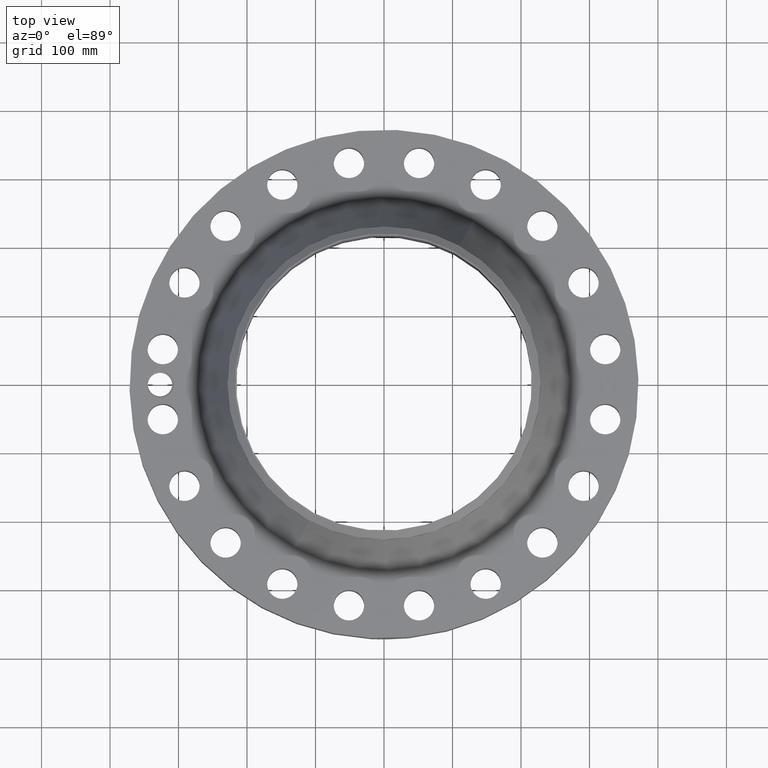
[diagram: clean part render]
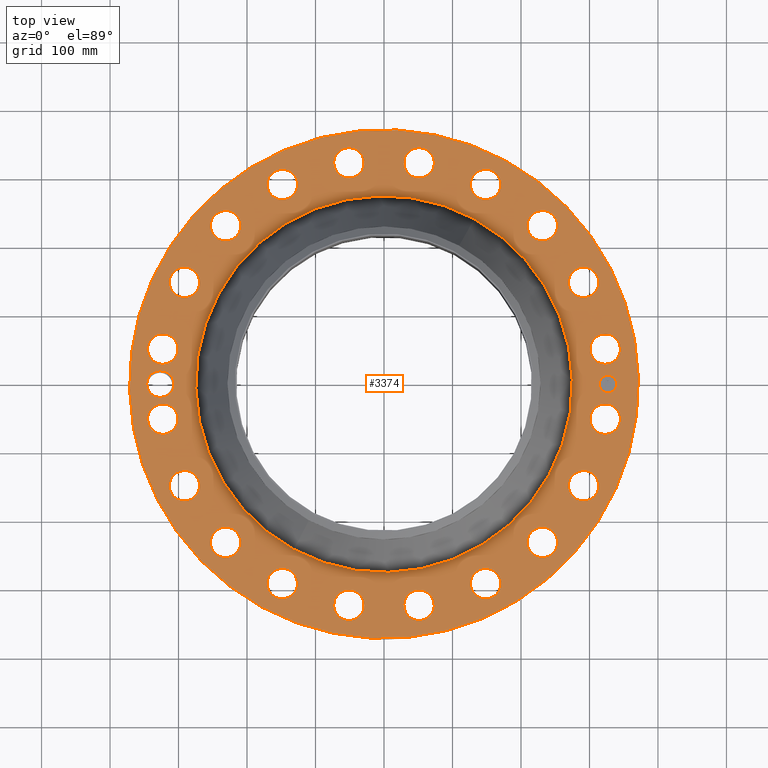
[diagram: same view with one face highlighted and labeled with its STEP entity id]
A machine part, top view. The second image highlights one B-rep face of the part: STEP entity #3374.
In plain terms, the highlighted planar face has unit normal (0, 0, -1).
Its self-contained STEP definition (entity closure, byte-faithful):
#2190=AXIS2_PLACEMENT_3D('Circle Axis2P3D',#2188,#2189,$) ;
#2216=AXIS2_PLACEMENT_3D('Circle Axis2P3D',#2214,#2215,$) ;
#2914=AXIS2_PLACEMENT_3D('Plane Axis2P3D',#2911,#2912,#2913) ;
#2918=AXIS2_PLACEMENT_3D('Circle Axis2P3D',#2916,#2917,$) ;
#2927=AXIS2_PLACEMENT_3D('Circle Axis2P3D',#2925,#2926,$) ;
#2976=AXIS2_PLACEMENT_3D('Circle Axis2P3D',#2974,#2975,$) ;
#2983=AXIS2_PLACEMENT_3D('Circle Axis2P3D',#2981,#2982,$) ;
#2994=AXIS2_PLACEMENT_3D('Circle Axis2P3D',#2992,#2993,$) ;
#3003=AXIS2_PLACEMENT_3D('Circle Axis2P3D',#3001,#3002,$) ;
#3016=AXIS2_PLACEMENT_3D('Circle Axis2P3D',#3014,#3015,$) ;
#3025=AXIS2_PLACEMENT_3D('Circle Axis2P3D',#3023,#3024,$) ;
#3034=AXIS2_PLACEMENT_3D('Circle Axis2P3D',#3032,#3033,$) ;
#3043=AXIS2_PLACEMENT_3D('Circle Axis2P3D',#3041,#3042,$) ;
#3052=AXIS2_PLACEMENT_3D('Circle Axis2P3D',#3050,#3051,$) ;
#3061=AXIS2_PLACEMENT_3D('Circle Axis2P3D',#3059,#3060,$) ;
#3070=AXIS2_PLACEMENT_3D('Circle Axis2P3D',#3068,#3069,$) ;
#3079=AXIS2_PLACEMENT_3D('Circle Axis2P3D',#3077,#3078,$) ;
#3088=AXIS2_PLACEMENT_3D('Circle Axis2P3D',#3086,#3087,$) ;
#3097=AXIS2_PLACEMENT_3D('Circle Axis2P3D',#3095,#3096,$) ;
#3106=AXIS2_PLACEMENT_3D('Circle Axis2P3D',#3104,#3105,$) ;
#3115=AXIS2_PLACEMENT_3D('Circle Axis2P3D',#3113,#3114,$) ;
#3124=AXIS2_PLACEMENT_3D('Circle Axis2P3D',#3122,#3123,$) ;
#3133=AXIS2_PLACEMENT_3D('Circle Axis2P3D',#3131,#3132,$) ;
#3142=AXIS2_PLACEMENT_3D('Circle Axis2P3D',#3140,#3141,$) ;
#3151=AXIS2_PLACEMENT_3D('Circle Axis2P3D',#3149,#3150,$) ;
#3160=AXIS2_PLACEMENT_3D('Circle Axis2P3D',#3158,#3159,$) ;
#3169=AXIS2_PLACEMENT_3D('Circle Axis2P3D',#3167,#3168,$) ;
#3178=AXIS2_PLACEMENT_3D('Circle Axis2P3D',#3176,#3177,$) ;
#3187=AXIS2_PLACEMENT_3D('Circle Axis2P3D',#3185,#3186,$) ;
#3196=AXIS2_PLACEMENT_3D('Circle Axis2P3D',#3194,#3195,$) ;
#3205=AXIS2_PLACEMENT_3D('Circle Axis2P3D',#3203,#3204,$) ;
#3214=AXIS2_PLACEMENT_3D('Circle Axis2P3D',#3212,#3213,$) ;
#3223=AXIS2_PLACEMENT_3D('Circle Axis2P3D',#3221,#3222,$) ;
#3232=AXIS2_PLACEMENT_3D('Circle Axis2P3D',#3230,#3231,$) ;
#3241=AXIS2_PLACEMENT_3D('Circle Axis2P3D',#3239,#3240,$) ;
#3250=AXIS2_PLACEMENT_3D('Circle Axis2P3D',#3248,#3249,$) ;
#3259=AXIS2_PLACEMENT_3D('Circle Axis2P3D',#3257,#3258,$) ;
#3268=AXIS2_PLACEMENT_3D('Circle Axis2P3D',#3266,#3267,$) ;
#3277=AXIS2_PLACEMENT_3D('Circle Axis2P3D',#3275,#3276,$) ;
#3286=AXIS2_PLACEMENT_3D('Circle Axis2P3D',#3284,#3285,$) ;
#3295=AXIS2_PLACEMENT_3D('Circle Axis2P3D',#3293,#3294,$) ;
#3304=AXIS2_PLACEMENT_3D('Circle Axis2P3D',#3302,#3303,$) ;
#3313=AXIS2_PLACEMENT_3D('Circle Axis2P3D',#3311,#3312,$) ;
#3322=AXIS2_PLACEMENT_3D('Circle Axis2P3D',#3320,#3321,$) ;
#3331=AXIS2_PLACEMENT_3D('Circle Axis2P3D',#3329,#3330,$) ;
#3340=AXIS2_PLACEMENT_3D('Circle Axis2P3D',#3338,#3339,$) ;
#3349=AXIS2_PLACEMENT_3D('Circle Axis2P3D',#3347,#3348,$) ;
#3358=AXIS2_PLACEMENT_3D('Circle Axis2P3D',#3356,#3357,$) ;
#3367=AXIS2_PLACEMENT_3D('Circle Axis2P3D',#3365,#3366,$) ;
#2188=CARTESIAN_POINT('Axis2P3D Location',(0.,0.,3.56200000001)) ;
#2192=CARTESIAN_POINT('Vertex',(-5.18910739677,-9.49859737644,3.56200000001)) ;
#2194=CARTESIAN_POINT('Vertex',(5.18910739677,9.49859737644,3.56200000001)) ;
#2214=CARTESIAN_POINT('Axis2P3D Location',(0.,0.,3.56200000001)) ;
#2911=CARTESIAN_POINT('Axis2P3D Location',(0.,14.6250000001,3.56200000001)) ;
#2916=CARTESIAN_POINT('Axis2P3D Location',(0.,0.,3.56200000001)) ;
#2920=CARTESIAN_POINT('Vertex',(7.01159850211,12.8346449677,3.56200000001)) ;
#2922=CARTESIAN_POINT('Vertex',(-7.01159850211,-12.8346449677,3.56200000001)) ;
#2925=CARTESIAN_POINT('Axis2P3D Location',(0.,0.,3.56200000001)) ;
#2935=CARTESIAN_POINT('Control Point',(-12.0625,2.23792987641E-015,3.56200000001)) ;
#2936=CARTESIAN_POINT('Control Point',(-12.0655027016,0.0700643671756,3.56200000001)) ;
#2937=CARTESIAN_POINT('Control Point',(-12.0760651226,0.139653910831,3.56200000001)) ;
#2938=CARTESIAN_POINT('Control Point',(-12.0941221859,0.207669651289,3.56200000001)) ;
#2939=CARTESIAN_POINT('Control Point',(-12.1445963315,0.338375320451,3.56200000001)) ;
#2940=CARTESIAN_POINT('Control Point',(-12.2216935889,0.45459657763,3.56200000001)) ;
#2941=CARTESIAN_POINT('Control Point',(-12.2663727942,0.508119555095,3.56200000001)) ;
#2942=CARTESIAN_POINT('Control Point',(-12.3498059005,0.588234271788,3.56200000001)) ;
#2943=CARTESIAN_POINT('Control Point',(-12.4457315881,0.651398109265,3.56200000001)) ;
#2944=CARTESIAN_POINT('Control Point',(-12.4858245861,0.67374969787,3.56200000001)) ;
#2945=CARTESIAN_POINT('Control Point',(-12.5584161227,0.707459372316,3.56200000001)) ;
#2946=CARTESIAN_POINT('Control Point',(-12.6344370824,0.731460619312,3.56200000001)) ;
#2947=CARTESIAN_POINT('Control Point',(-12.6674615636,0.739905637039,3.56200000001)) ;
#2948=CARTESIAN_POINT('Control Point',(-12.7008392342,0.746494339125,3.56200000001)) ;
#2949=CARTESIAN_POINT('Control Point',(-12.7344305313,0.751211213289,3.56200000001)) ;
#2950=CARTESIAN_POINT('Vertex',(-12.0625,2.23792987641E-015,3.56200000001)) ;
#2952=CARTESIAN_POINT('Vertex',(-12.7344305313,0.751211213289,3.56200000001)) ;
#2956=CARTESIAN_POINT('Control Point',(-12.0625,0.,3.56200000001)) ;
#2957=CARTESIAN_POINT('Control Point',(-12.0655034526,-0.0700818899843,3.56200000001)) ;
#2958=CARTESIAN_POINT('Control Point',(-12.0760704124,-0.139688717578,3.56200000001)) ;
#2959=CARTESIAN_POINT('Control Point',(-12.0941263267,-0.207699973518,3.56200000001)) ;
#2960=CARTESIAN_POINT('Control Point',(-12.1446047947,-0.338419067368,3.56200000001)) ;
#2961=CARTESIAN_POINT('Control Point',(-12.2216629118,-0.454573161277,3.56200000001)) ;
#2962=CARTESIAN_POINT('Control Point',(-12.2663277182,-0.508069800988,3.56200000001)) ;
#2963=CARTESIAN_POINT('Control Point',(-12.366418138,-0.604187141096,3.56200000001)) ;
#2964=CARTESIAN_POINT('Control Point',(-12.4844366994,-0.675897187593,3.56200000001)) ;
#2965=CARTESIAN_POINT('Control Point',(-12.5470591525,-0.705005544821,3.56200000001)) ;
#2966=CARTESIAN_POINT('Control Point',(-12.6230973424,-0.730534672824,3.56200000001)) ;
#2967=CARTESIAN_POINT('Control Point',(-12.7011241745,-0.745926347113,3.56200000001)) ;
#2968=CARTESIAN_POINT('Control Point',(-12.7123051902,-0.747917036937,3.56200000001)) ;
#2969=CARTESIAN_POINT('Control Point',(-12.7235165926,-0.749698983862,3.56200000001)) ;
#2970=CARTESIAN_POINT('Control Point',(-12.7347532243,-0.751271525076,3.56200000001)) ;
#2971=CARTESIAN_POINT('Vertex',(-12.7347532243,-0.751271525076,3.56200000001)) ;
#2974=CARTESIAN_POINT('Axis2P3D Location',(-12.8750000001,4.47585975282E-015,3.56200000001)) ;
#2978=CARTESIAN_POINT('Vertex',(-13.545692473,0.36640096788,3.56200000001)) ;
#2981=CARTESIAN_POINT('Axis2P3D Location',(-12.8750000001,4.47585975282E-015,3.56200000001)) ;
#2992=CARTESIAN_POINT('Axis2P3D Location',(12.7164873852,-2.0140937374,3.56200000001)) ;
#2996=CARTESIAN_POINT('Vertex',(11.9486026436,-1.59459639112,3.56200000001)) ;
#2998=CARTESIAN_POINT('Vertex',(13.4843721269,-2.43359108368,3.56200000001)) ;
#3001=CARTESIAN_POINT('Axis2P3D Location',(12.7164873852,-2.0140937374,3.56200000001)) ;
#3014=CARTESIAN_POINT('Axis2P3D Location',(11.471708999,-5.84512768417,3.56200000001)) ;
#3018=CARTESIAN_POINT('Vertex',(12.0723789772,-6.48138280381,3.56200000001)) ;
#3020=CARTESIAN_POINT('Vertex',(10.8710390208,-5.20887256453,3.56200000001)) ;
#3023=CARTESIAN_POINT('Axis2P3D Location',(11.471708999,-5.84512768417,3.56200000001)) ;
#3032=CARTESIAN_POINT('Axis2P3D Location',(9.10399980781,-9.10399980781,3.56200000001)) ;
#3036=CARTESIAN_POINT('Vertex',(9.47865726002,-9.89473161666,3.56200000001)) ;
#3038=CARTESIAN_POINT('Vertex',(8.72934235561,-8.31326799897,3.56200000001)) ;
#3041=CARTESIAN_POINT('Axis2P3D Location',(9.10399980781,-9.10399980781,3.56200000001)) ;
#3050=CARTESIAN_POINT('Axis2P3D Location',(5.84512768417,-11.471708999,3.56200000001)) ;
#3054=CARTESIAN_POINT('Vertex',(5.95709852854,-12.3395151582,3.56200000001)) ;
#3056=CARTESIAN_POINT('Vertex',(5.7331568398,-10.6039028397,3.56200000001)) ;
#3059=CARTESIAN_POINT('Axis2P3D Location',(5.84512768417,-11.471708999,3.56200000001)) ;
#3068=CARTESIAN_POINT('Axis2P3D Location',(2.0140937374,-12.7164873852,3.56200000001)) ;
#3072=CARTESIAN_POINT('Vertex',(1.85241748755,-13.5764209816,3.56200000001)) ;
#3074=CARTESIAN_POINT('Vertex',(2.17576998726,-11.8565537888,3.56200000001)) ;
#3077=CARTESIAN_POINT('Axis2P3D Location',(2.0140937374,-12.7164873852,3.56200000001)) ;
#3086=CARTESIAN_POINT('Axis2P3D Location',(-2.0140937374,-12.7164873852,3.56200000001)) ;
#3090=CARTESIAN_POINT('Vertex',(-2.43359108368,-13.4843721269,3.56200000001)) ;
#3092=CARTESIAN_POINT('Vertex',(-1.59459639112,-11.9486026436,3.56200000001)) ;
#3095=CARTESIAN_POINT('Axis2P3D Location',(-2.0140937374,-12.7164873852,3.56200000001)) ;
#3104=CARTESIAN_POINT('Axis2P3D Location',(-5.84512768417,-11.471708999,3.56200000001)) ;
#3108=CARTESIAN_POINT('Vertex',(-6.48138280381,-12.0723789772,3.56200000001)) ;
#3110=CARTESIAN_POINT('Vertex',(-5.20887256453,-10.8710390208,3.56200000001)) ;
#3113=CARTESIAN_POINT('Axis2P3D Location',(-5.84512768417,-11.471708999,3.56200000001)) ;
#3122=CARTESIAN_POINT('Axis2P3D Location',(-9.10399980781,-9.10399980781,3.56200000001)) ;
#3126=CARTESIAN_POINT('Vertex',(-9.89473161666,-9.47865726002,3.56200000001)) ;
#3128=CARTESIAN_POINT('Vertex',(-8.31326799897,-8.72934235561,3.56200000001)) ;
#3131=CARTESIAN_POINT('Axis2P3D Location',(-9.10399980781,-9.10399980781,3.56200000001)) ;
#3140=CARTESIAN_POINT('Axis2P3D Location',(-11.471708999,-5.84512768417,3.56200000001)) ;
#3144=CARTESIAN_POINT('Vertex',(-12.3395151582,-5.95709852854,3.56200000001)) ;
#3146=CARTESIAN_POINT('Vertex',(-10.6039028397,-5.7331568398,3.56200000001)) ;
#3149=CARTESIAN_POINT('Axis2P3D Location',(-11.471708999,-5.84512768417,3.56200000001)) ;
#3158=CARTESIAN_POINT('Axis2P3D Location',(-12.7164873852,-2.0140937374,3.56200000001)) ;
#3162=CARTESIAN_POINT('Vertex',(-13.5764209816,-1.85241748755,3.56200000001)) ;
#3164=CARTESIAN_POINT('Vertex',(-11.8565537888,-2.17576998726,3.56200000001)) ;
#3167=CARTESIAN_POINT('Axis2P3D Location',(-12.7164873852,-2.0140937374,3.56200000001)) ;
#3176=CARTESIAN_POINT('Axis2P3D Location',(-12.7164873852,2.0140937374,3.56200000001)) ;
#3180=CARTESIAN_POINT('Vertex',(-13.4843721269,2.43359108368,3.56200000001)) ;
#3182=CARTESIAN_POINT('Vertex',(-11.9486026436,1.59459639112,3.56200000001)) ;
#3185=CARTESIAN_POINT('Axis2P3D Location',(-12.7164873852,2.0140937374,3.56200000001)) ;
#3194=CARTESIAN_POINT('Axis2P3D Location',(-11.471708999,5.84512768417,3.56200000001)) ;
#3198=CARTESIAN_POINT('Vertex',(-12.0723789772,6.48138280381,3.56200000001)) ;
#3200=CARTESIAN_POINT('Vertex',(-10.8710390208,5.20887256453,3.56200000001)) ;
#3203=CARTESIAN_POINT('Axis2P3D Location',(-11.471708999,5.84512768417,3.56200000001)) ;
#3212=CARTESIAN_POINT('Axis2P3D Location',(-9.10399980781,9.10399980781,3.56200000001)) ;
#3216=CARTESIAN_POINT('Vertex',(-9.47865726002,9.89473161666,3.56200000001)) ;
#3218=CARTESIAN_POINT('Vertex',(-8.72934235561,8.31326799897,3.56200000001)) ;
#3221=CARTESIAN_POINT('Axis2P3D Location',(-9.10399980781,9.10399980781,3.56200000001)) ;
#3230=CARTESIAN_POINT('Axis2P3D Location',(-5.84512768417,11.471708999,3.56200000001)) ;
#3234=CARTESIAN_POINT('Vertex',(-5.95709852854,12.3395151582,3.56200000001)) ;
#3236=CARTESIAN_POINT('Vertex',(-5.7331568398,10.6039028397,3.56200000001)) ;
#3239=CARTESIAN_POINT('Axis2P3D Location',(-5.84512768417,11.471708999,3.56200000001)) ;
#3248=CARTESIAN_POINT('Axis2P3D Location',(-2.0140937374,12.7164873852,3.56200000001)) ;
#3252=CARTESIAN_POINT('Vertex',(-1.85241748755,13.5764209816,3.56200000001)) ;
#3254=CARTESIAN_POINT('Vertex',(-2.17576998726,11.8565537888,3.56200000001)) ;
#3257=CARTESIAN_POINT('Axis2P3D Location',(-2.0140937374,12.7164873852,3.56200000001)) ;
#3266=CARTESIAN_POINT('Axis2P3D Location',(2.0140937374,12.7164873852,3.56200000001)) ;
#3270=CARTESIAN_POINT('Vertex',(2.43359108368,13.4843721269,3.56200000001)) ;
#3272=CARTESIAN_POINT('Vertex',(1.59459639112,11.9486026436,3.56200000001)) ;
#3275=CARTESIAN_POINT('Axis2P3D Location',(2.0140937374,12.7164873852,3.56200000001)) ;
#3284=CARTESIAN_POINT('Axis2P3D Location',(5.84512768417,11.471708999,3.56200000001)) ;
#3288=CARTESIAN_POINT('Vertex',(6.48138280381,12.0723789772,3.56200000001)) ;
#3290=CARTESIAN_POINT('Vertex',(5.20887256453,10.8710390208,3.56200000001)) ;
#3293=CARTESIAN_POINT('Axis2P3D Location',(5.84512768417,11.471708999,3.56200000001)) ;
#3302=CARTESIAN_POINT('Axis2P3D Location',(9.10399980781,9.10399980781,3.56200000001)) ;
#3306=CARTESIAN_POINT('Vertex',(9.89473161666,9.47865726002,3.56200000001)) ;
#3308=CARTESIAN_POINT('Vertex',(8.31326799897,8.72934235561,3.56200000001)) ;
#3311=CARTESIAN_POINT('Axis2P3D Location',(9.10399980781,9.10399980781,3.56200000001)) ;
#3320=CARTESIAN_POINT('Axis2P3D Location',(11.471708999,5.84512768417,3.56200000001)) ;
#3324=CARTESIAN_POINT('Vertex',(12.3395151582,5.95709852854,3.56200000001)) ;
#3326=CARTESIAN_POINT('Vertex',(10.6039028397,5.7331568398,3.56200000001)) ;
#3329=CARTESIAN_POINT('Axis2P3D Location',(11.471708999,5.84512768417,3.56200000001)) ;
#3338=CARTESIAN_POINT('Axis2P3D Location',(12.7164873852,2.0140937374,3.56200000001)) ;
#3342=CARTESIAN_POINT('Vertex',(13.5764209816,1.85241748755,3.56200000001)) ;
#3344=CARTESIAN_POINT('Vertex',(11.8565537888,2.17576998726,3.56200000001)) ;
#3347=CARTESIAN_POINT('Axis2P3D Location',(12.7164873852,2.0140937374,3.56200000001)) ;
#3356=CARTESIAN_POINT('Axis2P3D Location',(12.8750000001,0.,3.56200000001)) ;
#3360=CARTESIAN_POINT('Vertex',(12.8750000001,0.499999995002,3.56200000001)) ;
#3362=CARTESIAN_POINT('Vertex',(12.8750000001,-0.499999995002,3.56200000001)) ;
#3365=CARTESIAN_POINT('Axis2P3D Location',(12.8750000001,0.,3.56200000001)) ;
#2189=DIRECTION('Axis2P3D Direction',(0.,0.,-0.0393700787402)) ;
#2215=DIRECTION('Axis2P3D Direction',(0.,0.,-0.0393700787402)) ;
#2912=DIRECTION('Axis2P3D Direction',(0.,0.,-0.0393700787402)) ;
#2913=DIRECTION('Axis2P3D XDirection',(0.0393700787402,0.,0.)) ;
#2917=DIRECTION('Axis2P3D Direction',(0.,0.,-0.0393700787402)) ;
#2926=DIRECTION('Axis2P3D Direction',(0.,0.,-0.0393700787402)) ;
#2975=DIRECTION('Axis2P3D Direction',(0.,0.,-0.0393700787402)) ;
#2982=DIRECTION('Axis2P3D Direction',(0.,0.,-0.0393700787402)) ;
#2993=DIRECTION('Axis2P3D Direction',(0.,0.,-0.0393700787402)) ;
#3002=DIRECTION('Axis2P3D Direction',(0.,0.,-0.0393700787402)) ;
#3015=DIRECTION('Axis2P3D Direction',(0.,0.,-0.0393700787402)) ;
#3024=DIRECTION('Axis2P3D Direction',(0.,0.,-0.0393700787402)) ;
#3033=DIRECTION('Axis2P3D Direction',(0.,0.,-0.0393700787402)) ;
#3042=DIRECTION('Axis2P3D Direction',(0.,0.,-0.0393700787402)) ;
#3051=DIRECTION('Axis2P3D Direction',(0.,0.,-0.0393700787402)) ;
#3060=DIRECTION('Axis2P3D Direction',(0.,0.,-0.0393700787402)) ;
#3069=DIRECTION('Axis2P3D Direction',(0.,0.,-0.0393700787402)) ;
#3078=DIRECTION('Axis2P3D Direction',(0.,0.,-0.0393700787402)) ;
#3087=DIRECTION('Axis2P3D Direction',(0.,0.,-0.0393700787402)) ;
#3096=DIRECTION('Axis2P3D Direction',(0.,0.,-0.0393700787402)) ;
#3105=DIRECTION('Axis2P3D Direction',(0.,0.,-0.0393700787402)) ;
#3114=DIRECTION('Axis2P3D Direction',(0.,0.,-0.0393700787402)) ;
#3123=DIRECTION('Axis2P3D Direction',(0.,0.,-0.0393700787402)) ;
#3132=DIRECTION('Axis2P3D Direction',(0.,0.,-0.0393700787402)) ;
#3141=DIRECTION('Axis2P3D Direction',(0.,0.,-0.0393700787402)) ;
#3150=DIRECTION('Axis2P3D Direction',(0.,0.,-0.0393700787402)) ;
#3159=DIRECTION('Axis2P3D Direction',(0.,0.,-0.0393700787402)) ;
#3168=DIRECTION('Axis2P3D Direction',(0.,0.,-0.0393700787402)) ;
#3177=DIRECTION('Axis2P3D Direction',(0.,0.,-0.0393700787402)) ;
#3186=DIRECTION('Axis2P3D Direction',(0.,0.,-0.0393700787402)) ;
#3195=DIRECTION('Axis2P3D Direction',(0.,0.,-0.0393700787402)) ;
#3204=DIRECTION('Axis2P3D Direction',(0.,0.,-0.0393700787402)) ;
#3213=DIRECTION('Axis2P3D Direction',(0.,0.,-0.0393700787402)) ;
#3222=DIRECTION('Axis2P3D Direction',(0.,0.,-0.0393700787402)) ;
#3231=DIRECTION('Axis2P3D Direction',(0.,0.,-0.0393700787402)) ;
#3240=DIRECTION('Axis2P3D Direction',(0.,0.,-0.0393700787402)) ;
#3249=DIRECTION('Axis2P3D Direction',(0.,0.,-0.0393700787402)) ;
#3258=DIRECTION('Axis2P3D Direction',(0.,0.,-0.0393700787402)) ;
#3267=DIRECTION('Axis2P3D Direction',(0.,0.,-0.0393700787402)) ;
#3276=DIRECTION('Axis2P3D Direction',(0.,0.,-0.0393700787402)) ;
#3285=DIRECTION('Axis2P3D Direction',(0.,0.,-0.0393700787402)) ;
#3294=DIRECTION('Axis2P3D Direction',(0.,0.,-0.0393700787402)) ;
#3303=DIRECTION('Axis2P3D Direction',(0.,0.,-0.0393700787402)) ;
#3312=DIRECTION('Axis2P3D Direction',(0.,0.,-0.0393700787402)) ;
#3321=DIRECTION('Axis2P3D Direction',(0.,0.,-0.0393700787402)) ;
#3330=DIRECTION('Axis2P3D Direction',(0.,0.,-0.0393700787402)) ;
#3339=DIRECTION('Axis2P3D Direction',(0.,0.,-0.0393700787402)) ;
#3348=DIRECTION('Axis2P3D Direction',(0.,0.,-0.0393700787402)) ;
#3357=DIRECTION('Axis2P3D Direction',(0.,0.,-0.0393700787402)) ;
#3366=DIRECTION('Axis2P3D Direction',(0.,0.,-0.0393700787402)) ;
#2931=ORIENTED_EDGE('',*,*,#2924,.F.) ;
#2932=ORIENTED_EDGE('',*,*,#2929,.F.) ;
#2987=ORIENTED_EDGE('',*,*,#2954,.F.) ;
#2988=ORIENTED_EDGE('',*,*,#2973,.T.) ;
#2989=ORIENTED_EDGE('',*,*,#2980,.T.) ;
#2990=ORIENTED_EDGE('',*,*,#2985,.T.) ;
#3007=ORIENTED_EDGE('',*,*,#3000,.T.) ;
#3008=ORIENTED_EDGE('',*,*,#3005,.T.) ;
#3011=ORIENTED_EDGE('',*,*,#2196,.T.) ;
#3012=ORIENTED_EDGE('',*,*,#2218,.T.) ;
#3029=ORIENTED_EDGE('',*,*,#3022,.T.) ;
#3030=ORIENTED_EDGE('',*,*,#3027,.T.) ;
#3047=ORIENTED_EDGE('',*,*,#3040,.T.) ;
#3048=ORIENTED_EDGE('',*,*,#3045,.T.) ;
#3065=ORIENTED_EDGE('',*,*,#3058,.T.) ;
#3066=ORIENTED_EDGE('',*,*,#3063,.T.) ;
#3083=ORIENTED_EDGE('',*,*,#3076,.T.) ;
#3084=ORIENTED_EDGE('',*,*,#3081,.T.) ;
#3101=ORIENTED_EDGE('',*,*,#3094,.T.) ;
#3102=ORIENTED_EDGE('',*,*,#3099,.T.) ;
#3119=ORIENTED_EDGE('',*,*,#3112,.T.) ;
#3120=ORIENTED_EDGE('',*,*,#3117,.T.) ;
#3137=ORIENTED_EDGE('',*,*,#3130,.T.) ;
#3138=ORIENTED_EDGE('',*,*,#3135,.T.) ;
#3155=ORIENTED_EDGE('',*,*,#3148,.T.) ;
#3156=ORIENTED_EDGE('',*,*,#3153,.T.) ;
#3173=ORIENTED_EDGE('',*,*,#3166,.T.) ;
#3174=ORIENTED_EDGE('',*,*,#3171,.T.) ;
#3191=ORIENTED_EDGE('',*,*,#3184,.T.) ;
#3192=ORIENTED_EDGE('',*,*,#3189,.T.) ;
#3209=ORIENTED_EDGE('',*,*,#3202,.T.) ;
#3210=ORIENTED_EDGE('',*,*,#3207,.T.) ;
#3227=ORIENTED_EDGE('',*,*,#3220,.T.) ;
#3228=ORIENTED_EDGE('',*,*,#3225,.T.) ;
#3245=ORIENTED_EDGE('',*,*,#3238,.T.) ;
#3246=ORIENTED_EDGE('',*,*,#3243,.T.) ;
#3263=ORIENTED_EDGE('',*,*,#3256,.T.) ;
#3264=ORIENTED_EDGE('',*,*,#3261,.T.) ;
#3281=ORIENTED_EDGE('',*,*,#3274,.T.) ;
#3282=ORIENTED_EDGE('',*,*,#3279,.T.) ;
#3299=ORIENTED_EDGE('',*,*,#3292,.T.) ;
#3300=ORIENTED_EDGE('',*,*,#3297,.T.) ;
#3317=ORIENTED_EDGE('',*,*,#3310,.T.) ;
#3318=ORIENTED_EDGE('',*,*,#3315,.T.) ;
#3335=ORIENTED_EDGE('',*,*,#3328,.T.) ;
#3336=ORIENTED_EDGE('',*,*,#3333,.T.) ;
#3353=ORIENTED_EDGE('',*,*,#3346,.T.) ;
#3354=ORIENTED_EDGE('',*,*,#3351,.T.) ;
#3371=ORIENTED_EDGE('',*,*,#3364,.T.) ;
#3372=ORIENTED_EDGE('',*,*,#3369,.T.) ;
#2991=FACE_BOUND('',#2986,.T.) ;
#3009=FACE_BOUND('',#3006,.T.) ;
#3013=FACE_BOUND('',#3010,.T.) ;
#3031=FACE_BOUND('',#3028,.T.) ;
#3049=FACE_BOUND('',#3046,.T.) ;
#3067=FACE_BOUND('',#3064,.T.) ;
#3085=FACE_BOUND('',#3082,.T.) ;
#3103=FACE_BOUND('',#3100,.T.) ;
#3121=FACE_BOUND('',#3118,.T.) ;
#3139=FACE_BOUND('',#3136,.T.) ;
#3157=FACE_BOUND('',#3154,.T.) ;
#3175=FACE_BOUND('',#3172,.T.) ;
#3193=FACE_BOUND('',#3190,.T.) ;
#3211=FACE_BOUND('',#3208,.T.) ;
#3229=FACE_BOUND('',#3226,.T.) ;
#3247=FACE_BOUND('',#3244,.T.) ;
#3265=FACE_BOUND('',#3262,.T.) ;
#3283=FACE_BOUND('',#3280,.T.) ;
#3301=FACE_BOUND('',#3298,.T.) ;
#3319=FACE_BOUND('',#3316,.T.) ;
#3337=FACE_BOUND('',#3334,.T.) ;
#3355=FACE_BOUND('',#3352,.T.) ;
#3373=FACE_BOUND('',#3370,.T.) ;
#3374=ADVANCED_FACE('PartBody',(#2933,#2991,#3009,#3013,#3031,#3049,#3067,#3085,#3103,#3121,#3139,#3157,#3175,#3193,#3211,#3229,#3247,#3265,#3283,#3301,#3319,#3337,#3355,#3373),#2915,.F.) ;
#2934=B_SPLINE_CURVE_WITH_KNOTS('',5,(#2935,#2936,#2937,#2938,#2939,#2940,#2941,#2942,#2943,#2944,#2945,#2946,#2947,#2948,#2949),.UNSPECIFIED.,.F.,.U.,(6,3,3,3,6),(0.,12.1950206869,24.3883275048,32.5133230452,38.5899053908),.UNSPECIFIED.) ;
#2955=B_SPLINE_CURVE_WITH_KNOTS('',5,(#2956,#2957,#2958,#2959,#2960,#2961,#2962,#2963,#2964,#2965,#2966,#2967,#2968,#2969,#2970),.UNSPECIFIED.,.F.,.U.,(6,3,3,3,6),(0.,12.1980706114,24.4062847661,36.6208535265,38.6563632008),.UNSPECIFIED.) ;
#2191=CIRCLE('generated circle',#2190,10.8235940285) ;
#2217=CIRCLE('generated circle',#2216,10.8235940285) ;
#2919=CIRCLE('generated circle',#2918,14.6250000001) ;
#2928=CIRCLE('generated circle',#2927,14.6250000001) ;
#2977=CIRCLE('generated circle',#2976,0.764250000003) ;
#2984=CIRCLE('generated circle',#2983,0.764250000003) ;
#2995=CIRCLE('generated circle',#2994,0.875000000004) ;
#3004=CIRCLE('generated circle',#3003,0.875000000004) ;
#3017=CIRCLE('generated circle',#3016,0.875000000004) ;
#3026=CIRCLE('generated circle',#3025,0.875000000004) ;
#3035=CIRCLE('generated circle',#3034,0.875000000004) ;
#3044=CIRCLE('generated circle',#3043,0.875000000004) ;
#3053=CIRCLE('generated circle',#3052,0.875000000004) ;
#3062=CIRCLE('generated circle',#3061,0.875000000004) ;
#3071=CIRCLE('generated circle',#3070,0.875000000004) ;
#3080=CIRCLE('generated circle',#3079,0.875000000004) ;
#3089=CIRCLE('generated circle',#3088,0.875000000004) ;
#3098=CIRCLE('generated circle',#3097,0.875000000004) ;
#3107=CIRCLE('generated circle',#3106,0.875000000004) ;
#3116=CIRCLE('generated circle',#3115,0.875000000004) ;
#3125=CIRCLE('generated circle',#3124,0.875000000003) ;
#3134=CIRCLE('generated circle',#3133,0.875000000003) ;
#3143=CIRCLE('generated circle',#3142,0.875000000004) ;
#3152=CIRCLE('generated circle',#3151,0.875000000004) ;
#3161=CIRCLE('generated circle',#3160,0.875000000004) ;
#3170=CIRCLE('generated circle',#3169,0.875000000004) ;
#3179=CIRCLE('generated circle',#3178,0.875000000004) ;
#3188=CIRCLE('generated circle',#3187,0.875000000004) ;
#3197=CIRCLE('generated circle',#3196,0.875000000004) ;
#3206=CIRCLE('generated circle',#3205,0.875000000004) ;
#3215=CIRCLE('generated circle',#3214,0.875000000004) ;
#3224=CIRCLE('generated circle',#3223,0.875000000004) ;
#3233=CIRCLE('generated circle',#3232,0.875000000003) ;
#3242=CIRCLE('generated circle',#3241,0.875000000003) ;
#3251=CIRCLE('generated circle',#3250,0.875000000004) ;
#3260=CIRCLE('generated circle',#3259,0.875000000004) ;
#3269=CIRCLE('generated circle',#3268,0.875000000004) ;
#3278=CIRCLE('generated circle',#3277,0.875000000004) ;
#3287=CIRCLE('generated circle',#3286,0.875000000004) ;
#3296=CIRCLE('generated circle',#3295,0.875000000004) ;
#3305=CIRCLE('generated circle',#3304,0.875000000004) ;
#3314=CIRCLE('generated circle',#3313,0.875000000004) ;
#3323=CIRCLE('generated circle',#3322,0.875000000003) ;
#3332=CIRCLE('generated circle',#3331,0.875000000003) ;
#3341=CIRCLE('generated circle',#3340,0.875000000004) ;
#3350=CIRCLE('generated circle',#3349,0.875000000004) ;
#3359=CIRCLE('generated circle',#3358,0.499999995002) ;
#3368=CIRCLE('generated circle',#3367,0.499999995002) ;
#2196=EDGE_CURVE('',#2193,#2195,#2191,.T.) ;
#2218=EDGE_CURVE('',#2195,#2193,#2217,.T.) ;
#2924=EDGE_CURVE('',#2921,#2923,#2919,.T.) ;
#2929=EDGE_CURVE('',#2923,#2921,#2928,.T.) ;
#2954=EDGE_CURVE('',#2951,#2953,#2934,.T.) ;
#2973=EDGE_CURVE('',#2951,#2972,#2955,.T.) ;
#2980=EDGE_CURVE('',#2972,#2979,#2977,.T.) ;
#2985=EDGE_CURVE('',#2979,#2953,#2984,.T.) ;
#3000=EDGE_CURVE('',#2997,#2999,#2995,.T.) ;
#3005=EDGE_CURVE('',#2999,#2997,#3004,.T.) ;
#3022=EDGE_CURVE('',#3019,#3021,#3017,.T.) ;
#3027=EDGE_CURVE('',#3021,#3019,#3026,.T.) ;
#3040=EDGE_CURVE('',#3037,#3039,#3035,.T.) ;
#3045=EDGE_CURVE('',#3039,#3037,#3044,.T.) ;
#3058=EDGE_CURVE('',#3055,#3057,#3053,.T.) ;
#3063=EDGE_CURVE('',#3057,#3055,#3062,.T.) ;
#3076=EDGE_CURVE('',#3073,#3075,#3071,.T.) ;
#3081=EDGE_CURVE('',#3075,#3073,#3080,.T.) ;
#3094=EDGE_CURVE('',#3091,#3093,#3089,.T.) ;
#3099=EDGE_CURVE('',#3093,#3091,#3098,.T.) ;
#3112=EDGE_CURVE('',#3109,#3111,#3107,.T.) ;
#3117=EDGE_CURVE('',#3111,#3109,#3116,.T.) ;
#3130=EDGE_CURVE('',#3127,#3129,#3125,.T.) ;
#3135=EDGE_CURVE('',#3129,#3127,#3134,.T.) ;
#3148=EDGE_CURVE('',#3145,#3147,#3143,.T.) ;
#3153=EDGE_CURVE('',#3147,#3145,#3152,.T.) ;
#3166=EDGE_CURVE('',#3163,#3165,#3161,.T.) ;
#3171=EDGE_CURVE('',#3165,#3163,#3170,.T.) ;
#3184=EDGE_CURVE('',#3181,#3183,#3179,.T.) ;
#3189=EDGE_CURVE('',#3183,#3181,#3188,.T.) ;
#3202=EDGE_CURVE('',#3199,#3201,#3197,.T.) ;
#3207=EDGE_CURVE('',#3201,#3199,#3206,.T.) ;
#3220=EDGE_CURVE('',#3217,#3219,#3215,.T.) ;
#3225=EDGE_CURVE('',#3219,#3217,#3224,.T.) ;
#3238=EDGE_CURVE('',#3235,#3237,#3233,.T.) ;
#3243=EDGE_CURVE('',#3237,#3235,#3242,.T.) ;
#3256=EDGE_CURVE('',#3253,#3255,#3251,.T.) ;
#3261=EDGE_CURVE('',#3255,#3253,#3260,.T.) ;
#3274=EDGE_CURVE('',#3271,#3273,#3269,.T.) ;
#3279=EDGE_CURVE('',#3273,#3271,#3278,.T.) ;
#3292=EDGE_CURVE('',#3289,#3291,#3287,.T.) ;
#3297=EDGE_CURVE('',#3291,#3289,#3296,.T.) ;
#3310=EDGE_CURVE('',#3307,#3309,#3305,.T.) ;
#3315=EDGE_CURVE('',#3309,#3307,#3314,.T.) ;
#3328=EDGE_CURVE('',#3325,#3327,#3323,.T.) ;
#3333=EDGE_CURVE('',#3327,#3325,#3332,.T.) ;
#3346=EDGE_CURVE('',#3343,#3345,#3341,.T.) ;
#3351=EDGE_CURVE('',#3345,#3343,#3350,.T.) ;
#3364=EDGE_CURVE('',#3361,#3363,#3359,.T.) ;
#3369=EDGE_CURVE('',#3363,#3361,#3368,.T.) ;
#2930=EDGE_LOOP('',(#2931,#2932)) ;
#2986=EDGE_LOOP('',(#2987,#2988,#2989,#2990)) ;
#3006=EDGE_LOOP('',(#3007,#3008)) ;
#3010=EDGE_LOOP('',(#3011,#3012)) ;
#3028=EDGE_LOOP('',(#3029,#3030)) ;
#3046=EDGE_LOOP('',(#3047,#3048)) ;
#3064=EDGE_LOOP('',(#3065,#3066)) ;
#3082=EDGE_LOOP('',(#3083,#3084)) ;
#3100=EDGE_LOOP('',(#3101,#3102)) ;
#3118=EDGE_LOOP('',(#3119,#3120)) ;
#3136=EDGE_LOOP('',(#3137,#3138)) ;
#3154=EDGE_LOOP('',(#3155,#3156)) ;
#3172=EDGE_LOOP('',(#3173,#3174)) ;
#3190=EDGE_LOOP('',(#3191,#3192)) ;
#3208=EDGE_LOOP('',(#3209,#3210)) ;
#3226=EDGE_LOOP('',(#3227,#3228)) ;
#3244=EDGE_LOOP('',(#3245,#3246)) ;
#3262=EDGE_LOOP('',(#3263,#3264)) ;
#3280=EDGE_LOOP('',(#3281,#3282)) ;
#3298=EDGE_LOOP('',(#3299,#3300)) ;
#3316=EDGE_LOOP('',(#3317,#3318)) ;
#3334=EDGE_LOOP('',(#3335,#3336)) ;
#3352=EDGE_LOOP('',(#3353,#3354)) ;
#3370=EDGE_LOOP('',(#3371,#3372)) ;
#2933=FACE_OUTER_BOUND('',#2930,.T.) ;
#2915=PLANE('',#2914) ;
#2193=VERTEX_POINT('',#2192) ;
#2195=VERTEX_POINT('',#2194) ;
#2921=VERTEX_POINT('',#2920) ;
#2923=VERTEX_POINT('',#2922) ;
#2951=VERTEX_POINT('',#2950) ;
#2953=VERTEX_POINT('',#2952) ;
#2972=VERTEX_POINT('',#2971) ;
#2979=VERTEX_POINT('',#2978) ;
#2997=VERTEX_POINT('',#2996) ;
#2999=VERTEX_POINT('',#2998) ;
#3019=VERTEX_POINT('',#3018) ;
#3021=VERTEX_POINT('',#3020) ;
#3037=VERTEX_POINT('',#3036) ;
#3039=VERTEX_POINT('',#3038) ;
#3055=VERTEX_POINT('',#3054) ;
#3057=VERTEX_POINT('',#3056) ;
#3073=VERTEX_POINT('',#3072) ;
#3075=VERTEX_POINT('',#3074) ;
#3091=VERTEX_POINT('',#3090) ;
#3093=VERTEX_POINT('',#3092) ;
#3109=VERTEX_POINT('',#3108) ;
#3111=VERTEX_POINT('',#3110) ;
#3127=VERTEX_POINT('',#3126) ;
#3129=VERTEX_POINT('',#3128) ;
#3145=VERTEX_POINT('',#3144) ;
#3147=VERTEX_POINT('',#3146) ;
#3163=VERTEX_POINT('',#3162) ;
#3165=VERTEX_POINT('',#3164) ;
#3181=VERTEX_POINT('',#3180) ;
#3183=VERTEX_POINT('',#3182) ;
#3199=VERTEX_POINT('',#3198) ;
#3201=VERTEX_POINT('',#3200) ;
#3217=VERTEX_POINT('',#3216) ;
#3219=VERTEX_POINT('',#3218) ;
#3235=VERTEX_POINT('',#3234) ;
#3237=VERTEX_POINT('',#3236) ;
#3253=VERTEX_POINT('',#3252) ;
#3255=VERTEX_POINT('',#3254) ;
#3271=VERTEX_POINT('',#3270) ;
#3273=VERTEX_POINT('',#3272) ;
#3289=VERTEX_POINT('',#3288) ;
#3291=VERTEX_POINT('',#3290) ;
#3307=VERTEX_POINT('',#3306) ;
#3309=VERTEX_POINT('',#3308) ;
#3325=VERTEX_POINT('',#3324) ;
#3327=VERTEX_POINT('',#3326) ;
#3343=VERTEX_POINT('',#3342) ;
#3345=VERTEX_POINT('',#3344) ;
#3361=VERTEX_POINT('',#3360) ;
#3363=VERTEX_POINT('',#3362) ;